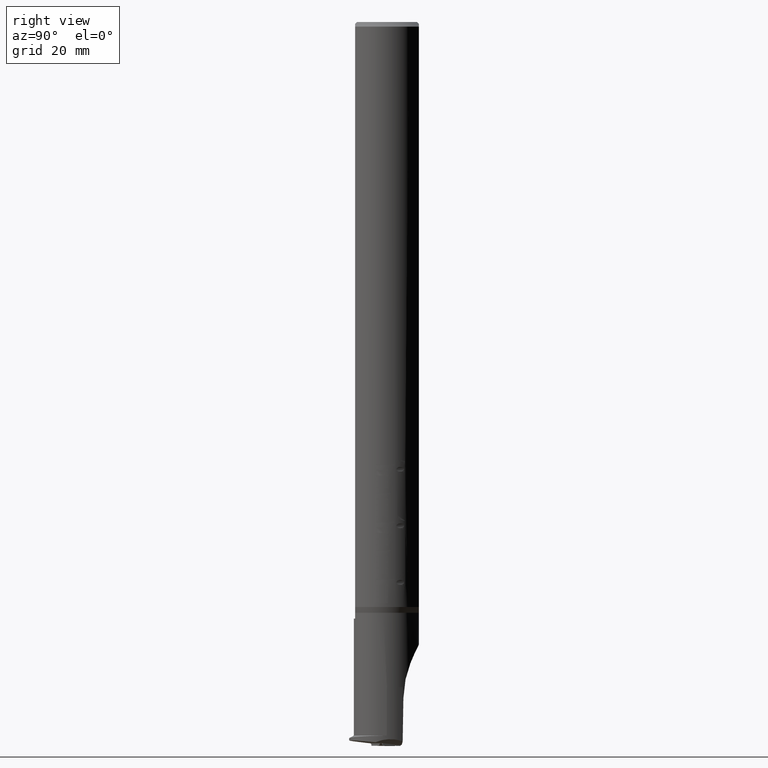
[diagram: clean part render]
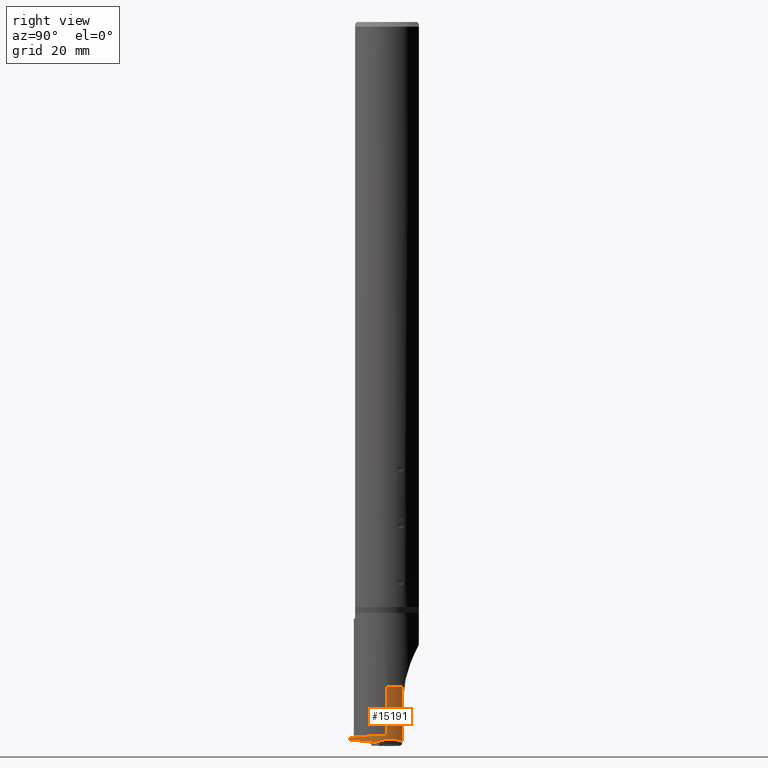
[diagram: same view with one face highlighted and labeled with its STEP entity id]
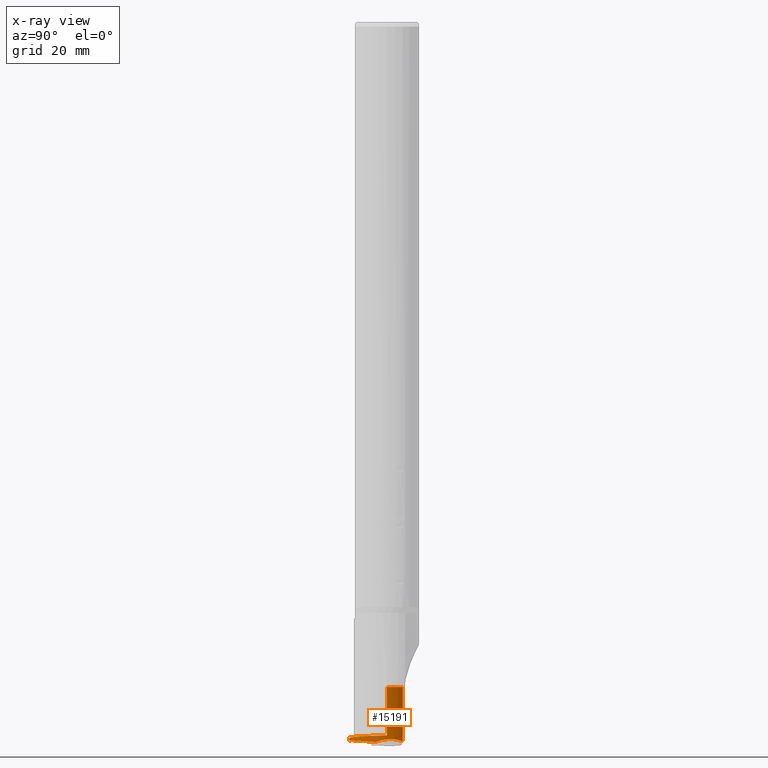
[diagram: x-ray of the same camera — body ghosted, the highlighted face saturated]
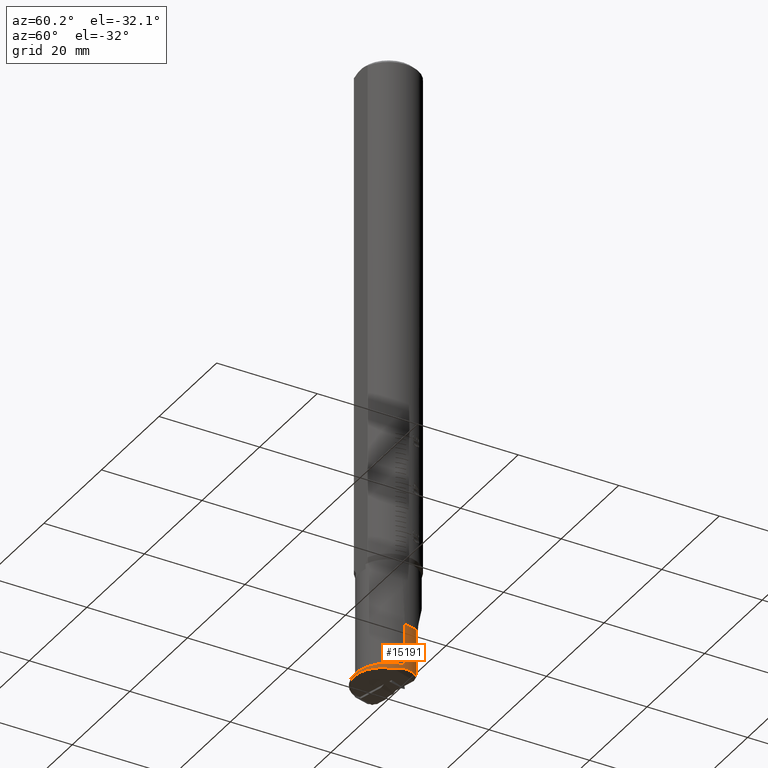
[diagram: same view with one face highlighted and labeled with its STEP entity id]
A machine part, right view. The second image highlights one B-rep face of the part: STEP entity #15191.
The next image is the same camera in x-ray: the body ghosted, the highlighted face saturated — about 0% of this face is hidden behind the body in this view.
A second angle (auxiliary view) of the same face is appended — the face is thin or edge-on in the first view.
In plain terms, the highlighted cylindrical surface (partial cylindrical patch) has radius 6.3836 mm, axis along (0, 0, -1).
Its self-contained STEP definition (entity closure, byte-faithful):
#113 = CARTESIAN_POINT ( 'NONE',  ( 37.79684228481927732, 15.81216132303016408, 27.17369748407243080 ) ) ;
#313 = DIRECTION ( 'NONE',  ( -1.000000000000000000, -0.000000000000000000, -0.000000000000000000 ) ) ;
#448 = CARTESIAN_POINT ( 'NONE',  ( 38.19437957852998977, 18.98814167577531364, 37.26975649229612486 ) ) ;
#468 = LINE ( 'NONE', #7609, #14594 ) ;
#492 = CARTESIAN_POINT ( 'NONE',  ( 37.13823940076151331, 17.72802805822879790, 36.74967326373982957 ) ) ;
#575 = CARTESIAN_POINT ( 'NONE',  ( 37.03905779913853280, 20.93923037886585092, 37.53671948006657999 ) ) ;
#956 = CARTESIAN_POINT ( 'NONE',  ( 37.67058485294048609, 15.22057382350608279, 28.06822010875746543 ) ) ;
#1144 = EDGE_CURVE ( 'NONE', #12820, #10976, #4020, .T. ) ;
#1228 = CARTESIAN_POINT ( 'NONE',  ( 37.93650662424050068, 14.52441667459718211, 30.09049350842374437 ) ) ;
#1233 = ORIENTED_EDGE ( 'NONE', *, *, #6133, .T. ) ;
#1245 = CARTESIAN_POINT ( 'NONE',  ( 37.77251626620697067, 16.34978879579113809, 26.57833240268297104 ) ) ;
#1326 = CARTESIAN_POINT ( 'NONE',  ( 28.68063583724575594, 21.92105195399718554, 37.53683574045090410 ) ) ;
#1365 = CARTESIAN_POINT ( 'NONE',  ( 28.68063583724575238, 20.97578391888144722, 37.53638027543076561 ) ) ;
#1691 = CARTESIAN_POINT ( 'NONE',  ( 37.04889584278178916, 20.26414317757198802, 37.54946679108002883 ) ) ;
#1771 = CARTESIAN_POINT ( 'NONE',  ( 36.89458139732055741, 23.69800093955259968, 36.85162552101773059 ) ) ;
#1885 = B_SPLINE_CURVE_WITH_KNOTS ( 'NONE', 3,
 ( #5095, #13728, #1245, #113, #11177, #9971, #5012, #8838, #14712, #9885 ),
 .UNSPECIFIED., .F., .F.,
 ( 4, 2, 2, 2, 4 ),
 ( 1.189993977903568623E-13, 0.001202861304792232633, 0.002405722609465465837, 0.003608583914138699042, 0.004811445218811932246 ),
 .UNSPECIFIED. ) ;
#1914 = CARTESIAN_POINT ( 'NONE',  ( 37.48738679875010149, 14.44312300548197747, 31.61519056884785073 ) ) ;
#2026 = ORIENTED_EDGE ( 'NONE', *, *, #14404, .T. ) ;
#2061 = ORIENTED_EDGE ( 'NONE', *, *, #4130, .T. ) ;
#2204 = VERTEX_POINT ( 'NONE', #3809 ) ;
#2239 = EDGE_CURVE ( 'NONE', #12820, #14641, #3994, .T. ) ;
#2404 = EDGE_CURVE ( 'NONE', #14641, #14086, #12685, .T. ) ;
#2731 = ORIENTED_EDGE ( 'NONE', *, *, #2239, .F. ) ;
#2864 = CARTESIAN_POINT ( 'NONE',  ( 37.51006776670045895, 22.20707425209482366, 37.59909735867228164 ) ) ;
#2932 = FACE_OUTER_BOUND ( 'NONE', #15403, .T. ) ;
#3206 =( BOUNDED_CURVE ( )  B_SPLINE_CURVE ( 3, ( #448, #7823, #2864, #13756 ),
 .UNSPECIFIED., .F., .F. ) 
 B_SPLINE_CURVE_WITH_KNOTS ( ( 4, 4 ),
 ( 2.732708173969411902, 3.488259695208697053 ),
 .UNSPECIFIED. ) 
 CURVE ( )  GEOMETRIC_REPRESENTATION_ITEM ( )  RATIONAL_B_SPLINE_CURVE ( ( 1.000000000000000000, 0.9529915690989669841, 0.9529915690989669841, 1.000000000000000000 ) ) 
 REPRESENTATION_ITEM ( '' )  );
#3283 = CARTESIAN_POINT ( 'NONE',  ( 37.75355723844761968, 16.96876322430996353, 26.06236712136698941 ) ) ;
#3290 = CARTESIAN_POINT ( 'NONE',  ( 37.75355723844761968, 16.96876322430996353, 26.06236712136698941 ) ) ;
#3443 = CARTESIAN_POINT ( 'NONE',  ( 37.25491150234853421, 15.92975529324058215, 35.27248496752957152 ) ) ;
#3586 = EDGE_CURVE ( 'NONE', #2204, #7704, #7008, .T. ) ;
#3696 = VERTEX_POINT ( 'NONE', #3290 ) ;
#3809 = CARTESIAN_POINT ( 'NONE',  ( 37.93650662424050068, 14.52441667459718211, 30.09049350842374437 ) ) ;
#3994 = B_SPLINE_CURVE_WITH_KNOTS ( 'NONE', 3,
 ( #13498, #1326, #6380, #8529 ),
 .UNSPECIFIED., .F., .F.,
 ( 4, 4 ),
 ( 0.000000000000000000, 1.000000000000000000 ),
 .UNSPECIFIED. ) ;
#4020 = B_SPLINE_CURVE_WITH_KNOTS ( 'NONE', 3,
 ( #10287, #7721, #12380, #11260 ),
 .UNSPECIFIED., .F., .F.,
 ( 4, 4 ),
 ( 0.000000000000000000, 1.000000000000000000 ),
 .UNSPECIFIED. ) ;
#4127 = CARTESIAN_POINT ( 'NONE',  ( -87.24402205604130245, 23.69800093955293718, 36.85162552101753874 ) ) ;
#4130 = EDGE_CURVE ( 'NONE', #7704, #10416, #3206, .T. ) ;
#4187 = CARTESIAN_POINT ( 'NONE',  ( 37.15299793721634103, 17.44089701477552978, 36.58130576773550047 ) ) ;
#4221 = CYLINDRICAL_SURFACE ( 'NONE', #14325, 6.383561667537080986 ) ;
#4818 = CARTESIAN_POINT ( 'NONE',  ( 28.68063583724575594, 23.69800093955294429, 36.85162552101753874 ) ) ;
#5012 = CARTESIAN_POINT ( 'NONE',  ( 37.85886626855344872, 14.97850904661433624, 28.54606047893987153 ) ) ;
#5095 = CARTESIAN_POINT ( 'NONE',  ( 37.75355723844761968, 16.96876322430996353, 26.06236712136698941 ) ) ;
#5194 = CARTESIAN_POINT ( 'NONE',  ( 28.68063583724575594, 20.81871447677629305, 31.15429552982696038 ) ) ;
#5469 = CARTESIAN_POINT ( 'NONE',  ( 37.18477127677069660, 16.89139716832491445, 36.19793208371339688 ) ) ;
#5695 = CARTESIAN_POINT ( 'NONE',  ( 37.54299870867914279, 14.44937627392867796, 30.61236209776465600 ) ) ;
#5893 =( BOUNDED_CURVE ( )  B_SPLINE_CURVE ( 3, ( #12750, #11628, #10274, #1771 ),
 .UNSPECIFIED., .F., .F. ) 
 B_SPLINE_CURVE_WITH_KNOTS ( ( 4, 4 ),
 ( 1.773701674943848783, 1.776935061401505589 ),
 .UNSPECIFIED. ) 
 CURVE ( )  GEOMETRIC_REPRESENTATION_ITEM ( )  RATIONAL_B_SPLINE_CURVE ( ( 1.000000000000000000, 0.9999991287678576812, 0.9999991287678576812, 1.000000000000000000 ) ) 
 REPRESENTATION_ITEM ( '' )  );
#5940 = CARTESIAN_POINT ( 'NONE',  ( 37.31193653407291322, 15.34399946927982938, 34.45406360639839249 ) ) ;
#6126 = CARTESIAN_POINT ( 'NONE',  ( 37.78852055915974972, 13.96061152562347019, 33.42641263495935533 ) ) ;
#6133 = EDGE_CURVE ( 'NONE', #3696, #2204, #1885, .T. ) ;
#6380 = CARTESIAN_POINT ( 'NONE',  ( 28.68063583724575594, 22.86538752900317917, 37.29913571648491200 ) ) ;
#6402 = DIRECTION ( 'NONE',  ( 1.000000000000000000, 0.000000000000000000, 0.000000000000000000 ) ) ;
#6593 = CARTESIAN_POINT ( 'NONE',  ( 37.09848575327198716, 18.63993568420540470, 37.16394074588257013 ) ) ;
#6632 = DIRECTION ( 'NONE',  ( 0.000000000000000000, 0.000000000000000000, -1.000000000000000000 ) ) ;
#6723 = B_SPLINE_CURVE_WITH_KNOTS ( 'NONE', 3,
 ( #575, #1691, #12913, #6593, #11479, #492, #4187, #5469, #6975, #11864, #3443, #15548, #5940, #8322, #7135, #11700, #6899, #14112, #1914, #9204, #5695, #13068, #11788, #8163, #10745, #956, #10503, #14351, #6814, #3283 ),
 .UNSPECIFIED., .F., .F.,
 ( 4, 2, 2, 2, 2, 2, 2, 2, 2, 2, 2, 2, 2, 2, 4 ),
 ( 1.456213309350563008E-15, 0.001997081961496976598, 0.002995622942244733494, 0.003994163922992490824, 0.004992704903740248154, 0.005991245884488005484, 0.006989786865235765416, 0.007988327845983524481, 0.008986868826731286147, 0.009985409807479047814, 0.01098395078822680775, 0.01198249176897456594, 0.01298103274972232588, 0.01397957373047008754, 0.01597665569196559526 ),
 .UNSPECIFIED. ) ;
#6806 = ORIENTED_EDGE ( 'NONE', *, *, #2404, .F. ) ;
#6814 = CARTESIAN_POINT ( 'NONE',  ( 37.73926641522933068, 16.43024601804977181, 26.46953407783656687 ) ) ;
#6899 = CARTESIAN_POINT ( 'NONE',  ( 37.42954951790793672, 14.59291895034061071, 32.60375468294560619 ) ) ;
#6975 = CARTESIAN_POINT ( 'NONE',  ( 37.20176526988414167, 16.63007235834296438, 35.98295729370818208 ) ) ;
#7008 =( BOUNDED_CURVE ( )  B_SPLINE_CURVE ( 3, ( #1228, #6126, #12293, #11011 ),
 .UNSPECIFIED., .F., .F. ) 
 B_SPLINE_CURVE_WITH_KNOTS ( ( 4, 4 ),
 ( 2.712365033645181445, 4.159742807294353639 ),
 .UNSPECIFIED. ) 
 CURVE ( )  GEOMETRIC_REPRESENTATION_ITEM ( )  RATIONAL_B_SPLINE_CURVE ( ( 1.000000000000000000, 0.8329121493274792565, 0.8329121493274792565, 1.000000000000000000 ) ) 
 REPRESENTATION_ITEM ( '' )  );
#7135 = CARTESIAN_POINT ( 'NONE',  ( 37.37036247003705114, 14.89702062024162288, 33.56146032154111225 ) ) ;
#7609 = CARTESIAN_POINT ( 'NONE',  ( -87.24402205604130245, 20.93923037886559868, 37.53671948006658710 ) ) ;
#7704 = VERTEX_POINT ( 'NONE', #9019 ) ;
#7721 = CARTESIAN_POINT ( 'NONE',  ( 28.68063583724575594, 20.96359272421105757, 37.53622457194001782 ) ) ;
#7823 = CARTESIAN_POINT ( 'NONE',  ( 37.55971820079091117, 20.56612843920862232, 37.74210349397075248 ) ) ;
#7963 = DIRECTION ( 'NONE',  ( 1.000000000000000000, 0.000000000000000000, 0.000000000000000000 ) ) ;
#8163 = CARTESIAN_POINT ( 'NONE',  ( 37.62683890763408101, 14.80521014429377225, 28.98675517504553056 ) ) ;
#8322 = CARTESIAN_POINT ( 'NONE',  ( 37.35081872571582551, 15.03009585893249955, 33.86591280916767488 ) ) ;
#8420 = ORIENTED_EDGE ( 'NONE', *, *, #13514, .T. ) ;
#8529 = CARTESIAN_POINT ( 'NONE',  ( 28.68063583724575594, 23.69800093955294429, 36.85162552101753874 ) ) ;
#8838 = CARTESIAN_POINT ( 'NONE',  ( 37.89564885242655379, 14.69785587451489128, 29.29796056051462827 ) ) ;
#8863 = ORIENTED_EDGE ( 'NONE', *, *, #1144, .T. ) ;
#9019 = CARTESIAN_POINT ( 'NONE',  ( 38.19437957852998977, 18.98814167577531364, 37.26975649229612486 ) ) ;
#9204 = CARTESIAN_POINT ( 'NONE',  ( 37.52462111143404400, 14.42975745349532168, 30.94979858485316626 ) ) ;
#9521 = CARTESIAN_POINT ( 'NONE',  ( 37.03905779913853280, 20.93923037886585092, 37.53671948006657999 ) ) ;
#9885 = CARTESIAN_POINT ( 'NONE',  ( 37.93650662424050068, 14.52441667459718211, 30.09049350842374437 ) ) ;
#9971 = CARTESIAN_POINT ( 'NONE',  ( 37.84195108810955333, 15.15267746294185436, 28.18669731318833271 ) ) ;
#10274 = CARTESIAN_POINT ( 'NONE',  ( 37.28040142082490860, 23.69186038033157260, 36.85472880432173071 ) ) ;
#10287 = CARTESIAN_POINT ( 'NONE',  ( 28.68063583724575238, 20.97578391888144722, 37.53638027543076561 ) ) ;
#10416 = VERTEX_POINT ( 'NONE', #13102 ) ;
#10503 = CARTESIAN_POINT ( 'NONE',  ( 37.68366797377984767, 15.38929168846260254, 27.78059438490661037 ) ) ;
#10745 = CARTESIAN_POINT ( 'NONE',  ( 37.64205788706804867, 14.92720401589128976, 28.67374221098692288 ) ) ;
#10976 = VERTEX_POINT ( 'NONE', #12720 ) ;
#11011 = CARTESIAN_POINT ( 'NONE',  ( 38.19437957852998977, 18.98814167577531364, 37.26975649229612486 ) ) ;
#11177 = CARTESIAN_POINT ( 'NONE',  ( 37.81095427218517813, 15.56852264892730453, 27.50106403041082359 ) ) ;
#11260 = CARTESIAN_POINT ( 'NONE',  ( 28.68063583724575594, 20.93923037886559513, 37.53671948006658710 ) ) ;
#11479 = CARTESIAN_POINT ( 'NONE',  ( 37.11101693095157827, 18.32656183164992569, 37.04070103032991312 ) ) ;
#11628 = CARTESIAN_POINT ( 'NONE',  ( 37.66635137238978359, 23.68571481208040197, 36.85782215617401647 ) ) ;
#11700 = CARTESIAN_POINT ( 'NONE',  ( 37.40964510966593792, 14.67857579176374472, 32.93182116784210933 ) ) ;
#11788 = CARTESIAN_POINT ( 'NONE',  ( 37.59493882707647572, 14.61252590937000662, 29.62338435925320468 ) ) ;
#11864 = CARTESIAN_POINT ( 'NONE',  ( 37.23676646452233285, 16.15050264383426892, 35.52104437869177644 ) ) ;
#12293 = CARTESIAN_POINT ( 'NONE',  ( 37.89172190098379644, 15.74700440622578768, 36.29956998201343765 ) ) ;
#12380 = CARTESIAN_POINT ( 'NONE',  ( 28.68063583724575594, 20.95141188079708172, 37.53648946327272995 ) ) ;
#12685 = LINE ( 'NONE', #4127, #15112 ) ;
#12720 = CARTESIAN_POINT ( 'NONE',  ( 28.68063583724575594, 20.93923037886559513, 37.53671948006658710 ) ) ;
#12750 = CARTESIAN_POINT ( 'NONE',  ( 38.05243024325894652, 23.67956425086174121, 36.86090556848952104 ) ) ;
#12820 = VERTEX_POINT ( 'NONE', #1365 ) ;
#12913 = CARTESIAN_POINT ( 'NONE',  ( 37.06511228900654942, 19.60500862183196702, 37.45738921524801412 ) ) ;
#13068 = CARTESIAN_POINT ( 'NONE',  ( 37.57819011672396670, 14.54112870103630506, 29.94844404010364514 ) ) ;
#13102 = CARTESIAN_POINT ( 'NONE',  ( 38.05243024325894652, 23.67956425086174121, 36.86090556848952104 ) ) ;
#13498 = CARTESIAN_POINT ( 'NONE',  ( 28.68063583724575238, 20.97578391888144722, 37.53638027543076561 ) ) ;
#13514 = EDGE_CURVE ( 'NONE', #13534, #3696, #6723, .T. ) ;
#13534 = VERTEX_POINT ( 'NONE', #9521 ) ;
#13728 = CARTESIAN_POINT ( 'NONE',  ( 37.76213762883077152, 16.64543070621861176, 26.30683529396949538 ) ) ;
#13756 = CARTESIAN_POINT ( 'NONE',  ( 38.05243024325894652, 23.67956425086174121, 36.86090556848952104 ) ) ;
#14086 = VERTEX_POINT ( 'NONE', #14374 ) ;
#14112 = CARTESIAN_POINT ( 'NONE',  ( 37.46838092902050477, 14.47563321779098722, 31.94599112502460869 ) ) ;
#14325 = AXIS2_PLACEMENT_3D ( 'NONE', #5194, #6402, #6632 ) ;
#14351 = CARTESIAN_POINT ( 'NONE',  ( 37.71958918497993807, 15.95932186156626464, 26.96160073536795920 ) ) ;
#14374 = CARTESIAN_POINT ( 'NONE',  ( 36.89458139732055741, 23.69800093955259968, 36.85162552101773059 ) ) ;
#14404 = EDGE_CURVE ( 'NONE', #10416, #14086, #5893, .T. ) ;
#14594 = VECTOR ( 'NONE', #313, 1000.000000000000000 ) ;
#14641 = VERTEX_POINT ( 'NONE', #4818 ) ;
#14712 = CARTESIAN_POINT ( 'NONE',  ( 37.91556751666026059, 14.59189045427560139, 29.69126502915456811 ) ) ;
#14828 = EDGE_CURVE ( 'NONE', #13534, #10976, #468, .T. ) ;
#14952 = ORIENTED_EDGE ( 'NONE', *, *, #14828, .F. ) ;
#15072 = ORIENTED_EDGE ( 'NONE', *, *, #3586, .T. ) ;
#15112 = VECTOR ( 'NONE', #7963, 1000.000000000000000 ) ;
#15191 = ADVANCED_FACE ( 'NONE', ( #2932 ), #4221, .T. ) ;
#15403 = EDGE_LOOP ( 'NONE', ( #14952, #8420, #1233, #15072, #2061, #2026, #6806, #2731, #8863 ) ) ;
#15548 = CARTESIAN_POINT ( 'NONE',  ( 37.29244677682147824, 15.52669947156618946, 34.73981966553079559 ) ) ;